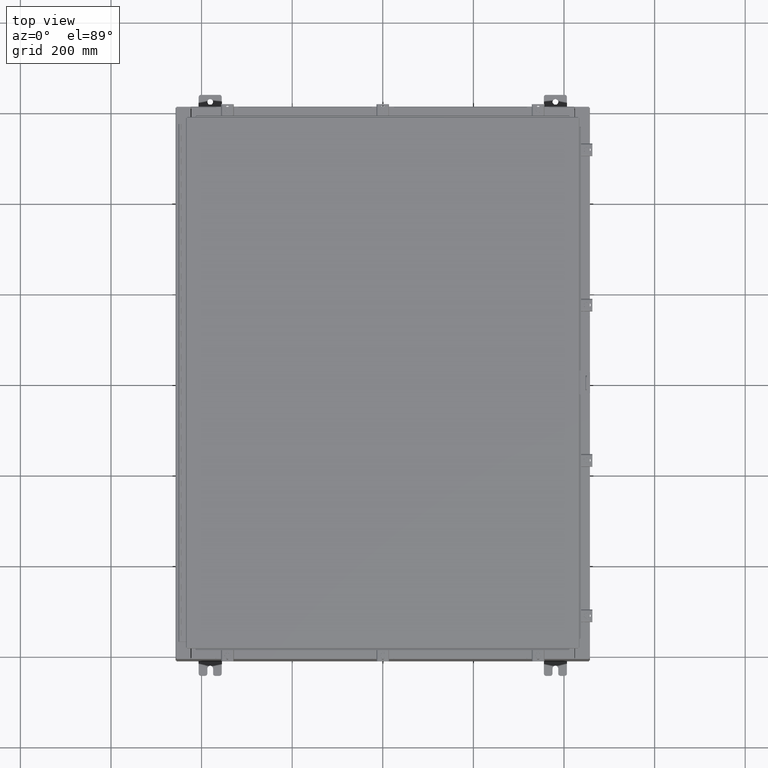
[diagram: clean part render]
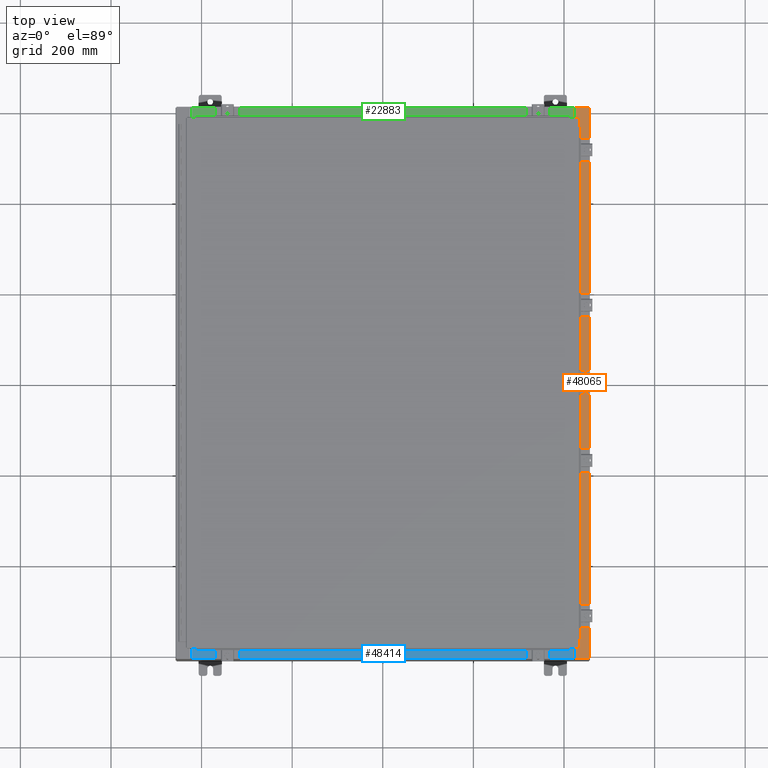
[diagram: same view with three faces highlighted in distinct colors, each labeled with its STEP entity id]
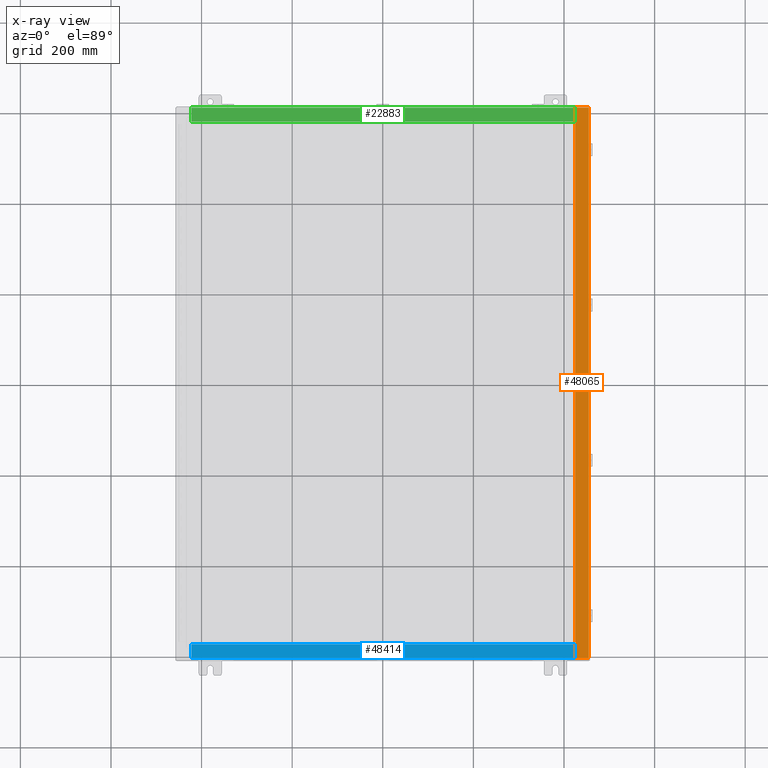
[diagram: x-ray of the same camera — body ghosted, the three highlighted faces saturated]
A machine part, top view with three faces highlighted in distinct colors.
The next image is the same camera in x-ray (body ghosted, the three faces saturated) — at least one of them is partly hidden behind the body in this view.
Their STEP definitions:

[orange] entity #48065 — the highlighted planar face has unit normal (-0, 0, -1).
#588 = PLANE ( 'NONE',  #3339 ) ;
#1095 = EDGE_CURVE ( 'NONE', #52980, #25653, #40263, .T. ) ;
#1449 = VERTEX_POINT ( 'NONE', #4700 ) ;
#2296 = VERTEX_POINT ( 'NONE', #34381 ) ;
#2338 = CARTESIAN_POINT ( 'NONE',  ( 16.75005000000003700, -22.59374999999998900, 11.92530000000001200 ) ) ;
#2356 = CARTESIAN_POINT ( 'NONE',  ( 16.75005000000003700, -22.63109999999998600, 11.92530000000000900 ) ) ;
#3250 = DIRECTION ( 'NONE',  ( 1.000000000000000000, 0.0000000000000000000, -7.132762385546384700E-015 ) ) ;
#3339 = AXIS2_PLACEMENT_3D ( 'NONE', #22097, #51938, #26365 ) ;
#4700 = CARTESIAN_POINT ( 'NONE',  ( 16.71270000000003700, 22.59374999999997200, 11.92530000000001200 ) ) ;
#5506 = DIRECTION ( 'NONE',  ( -0.0000000000000000000, -1.000000000000000000, -0.0000000000000000000 ) ) ;
#5538 = CARTESIAN_POINT ( 'NONE',  ( 16.75005000000003700, 22.61242499999997000, 11.92530000000001200 ) ) ;
#5930 = VERTEX_POINT ( 'NONE', #9589 ) ;
#6330 = ORIENTED_EDGE ( 'NONE', *, *, #32379, .T. ) ;
#6669 = CIRCLE ( 'NONE', #37465, 0.01867499999999949400 ) ;
#7006 = CARTESIAN_POINT ( 'NONE',  ( 16.71270000000003700, -22.59374999999998900, 11.92530000000001200 ) ) ;
#7992 = VECTOR ( 'NONE', #39925, 39.37007874015748100 ) ;
#8954 = LINE ( 'NONE', #35385, #41693 ) ;
#9186 = CARTESIAN_POINT ( 'NONE',  ( 16.75005000000003700, -22.59374999999998900, 11.92530000000000900 ) ) ;
#9589 = CARTESIAN_POINT ( 'NONE',  ( 16.69970000000003900, -22.63109999999998600, 11.92530000000000900 ) ) ;
#9841 = DIRECTION ( 'NONE',  ( 1.000000000000000000, 0.0000000000000000000, 0.0000000000000000000 ) ) ;
#10051 = CARTESIAN_POINT ( 'NONE',  ( 16.69970000000003900, 0.0000000000000000000, 11.92530000000000900 ) ) ;
#10358 = DIRECTION ( 'NONE',  ( -1.000000000000000000, 0.0000000000000000000, 7.132762385546384700E-015 ) ) ;
#10795 = CARTESIAN_POINT ( 'NONE',  ( 16.69970000000003900, -22.63109999999998600, 11.92530000000000900 ) ) ;
#10895 = DIRECTION ( 'NONE',  ( 1.000000000000000000, 0.0000000000000000000, 0.0000000000000000000 ) ) ;
#13251 = CARTESIAN_POINT ( 'NONE',  ( 16.69970000000003900, -23.92529999999998900, 11.92530000000000900 ) ) ;
#13357 = ORIENTED_EDGE ( 'NONE', *, *, #23304, .T. ) ;
#13771 = VECTOR ( 'NONE', #32250, 39.37007874015748100 ) ;
#15083 = EDGE_LOOP ( 'NONE', ( #40647, #13357, #6330, #16248, #47482, #21761, #48441, #25686, #29473, #48890, #42479, #34688 ) ) ;
#15247 = VECTOR ( 'NONE', #25599, 39.37007874015748100 ) ;
#16248 = ORIENTED_EDGE ( 'NONE', *, *, #20658, .F. ) ;
#18825 = EDGE_CURVE ( 'NONE', #21245, #23136, #36500, .T. ) ;
#18997 = LINE ( 'NONE', #31540, #39042 ) ;
#19499 = LINE ( 'NONE', #32371, #52195 ) ;
#20135 = EDGE_CURVE ( 'NONE', #25653, #43550, #18997, .T. ) ;
#20658 = EDGE_CURVE ( 'NONE', #52980, #52063, #8954, .T. ) ;
#21245 = VERTEX_POINT ( 'NONE', #9186 ) ;
#21523 = CARTESIAN_POINT ( 'NONE',  ( 17.91230000000003700, -23.92529999999998900, 11.92530000000000400 ) ) ;
#21581 = CARTESIAN_POINT ( 'NONE',  ( 16.75005000000003700, 22.59374999999997200, 11.92530000000000900 ) ) ;
#21761 = ORIENTED_EDGE ( 'NONE', *, *, #20135, .T. ) ;
#22097 = CARTESIAN_POINT ( 'NONE',  ( 8.532114493224043100E-014, 0.0000000000000000000, 11.92530000000013000 ) ) ;
#22592 = VECTOR ( 'NONE', #3250, 39.37007874015748100 ) ;
#22781 = CARTESIAN_POINT ( 'NONE',  ( 16.75005000000003700, -22.61242499999998800, 11.92530000000001200 ) ) ;
#23136 = VERTEX_POINT ( 'NONE', #47393 ) ;
#23304 = EDGE_CURVE ( 'NONE', #5930, #48634, #42079, .T. ) ;
#23433 = CIRCLE ( 'NONE', #32467, 0.01867499999999949400 ) ;
#25599 = DIRECTION ( 'NONE',  ( 1.000000000000000000, 0.0000000000000000000, 4.340572780400098900E-014 ) ) ;
#25653 = VERTEX_POINT ( 'NONE', #43400 ) ;
#25686 = ORIENTED_EDGE ( 'NONE', *, *, #51027, .F. ) ;
#26365 = DIRECTION ( 'NONE',  ( -1.000000000000000000, 0.0000000000000000000, 7.132762385546384700E-015 ) ) ;
#26819 = CARTESIAN_POINT ( 'NONE',  ( 16.75005000000003700, 22.63109999999996800, 11.92530000000001200 ) ) ;
#27074 = DIRECTION ( 'NONE',  ( 1.000000000000000000, 0.0000000000000000000, 0.0000000000000000000 ) ) ;
#28456 = VERTEX_POINT ( 'NONE', #2356 ) ;
#28775 = VERTEX_POINT ( 'NONE', #21581 ) ;
#29473 = ORIENTED_EDGE ( 'NONE', *, *, #50053, .F. ) ;
#31327 = CARTESIAN_POINT ( 'NONE',  ( 16.69970000000003900, 22.63109999999996800, 11.92530000000000900 ) ) ;
#31540 = CARTESIAN_POINT ( 'NONE',  ( 16.69970000000003900, 0.0000000000000000000, 11.92530000000000900 ) ) ;
#31657 = CARTESIAN_POINT ( 'NONE',  ( 8.532114493224043100E-014, 23.92529999999998600, 11.92530000000013000 ) ) ;
#32105 = EDGE_CURVE ( 'NONE', #2296, #43550, #45999, .T. ) ;
#32250 = DIRECTION ( 'NONE',  ( -1.000000000000000000, 0.0000000000000000000, 0.0000000000000000000 ) ) ;
#32371 = CARTESIAN_POINT ( 'NONE',  ( 16.71270000000003700, 22.59374999999997200, 11.92530000000001200 ) ) ;
#32379 = EDGE_CURVE ( 'NONE', #48634, #52063, #33962, .T. ) ;
#32467 = AXIS2_PLACEMENT_3D ( 'NONE', #22781, #52628, #27074 ) ;
#33962 = LINE ( 'NONE', #45834, #22592 ) ;
#34381 = CARTESIAN_POINT ( 'NONE',  ( 16.75005000000003700, 22.63109999999996800, 11.92530000000000900 ) ) ;
#34441 = EDGE_CURVE ( 'NONE', #23136, #1449, #47879, .T. ) ;
#34653 = VECTOR ( 'NONE', #35592, 39.37007874015748100 ) ;
#34688 = ORIENTED_EDGE ( 'NONE', *, *, #43040, .F. ) ;
#35385 = CARTESIAN_POINT ( 'NONE',  ( 17.91230000000003700, -23.92529999999998900, 11.92530000000000400 ) ) ;
#35420 = DIRECTION ( 'NONE',  ( 7.132762385546384700E-015, 0.0000000000000000000, 1.000000000000000000 ) ) ;
#35592 = DIRECTION ( 'NONE',  ( -1.000000000000000000, 0.0000000000000000000, -4.340572780400098900E-014 ) ) ;
#36500 = LINE ( 'NONE', #2338, #13771 ) ;
#37465 = AXIS2_PLACEMENT_3D ( 'NONE', #5538, #35420, #9841 ) ;
#39042 = VECTOR ( 'NONE', #48676, 39.37007874015748100 ) ;
#39552 = CARTESIAN_POINT ( 'NONE',  ( 17.91230000000003700, 23.92529999999998600, 11.92530000000000400 ) ) ;
#39925 = DIRECTION ( 'NONE',  ( 0.0000000000000000000, -1.000000000000000000, 0.0000000000000000000 ) ) ;
#40263 = LINE ( 'NONE', #31657, #50258 ) ;
#40647 = ORIENTED_EDGE ( 'NONE', *, *, #40734, .F. ) ;
#40734 = EDGE_CURVE ( 'NONE', #5930, #28456, #49303, .T. ) ;
#41199 = DIRECTION ( 'NONE',  ( -0.0000000000000000000, 1.000000000000000000, -0.0000000000000000000 ) ) ;
#41693 = VECTOR ( 'NONE', #5506, 39.37007874015748100 ) ;
#42079 = LINE ( 'NONE', #10051, #7992 ) ;
#42479 = ORIENTED_EDGE ( 'NONE', *, *, #18825, .F. ) ;
#43040 = EDGE_CURVE ( 'NONE', #28456, #21245, #23433, .T. ) ;
#43400 = CARTESIAN_POINT ( 'NONE',  ( 16.69970000000003900, 23.92529999999998200, 11.92530000000000900 ) ) ;
#43550 = VERTEX_POINT ( 'NONE', #31327 ) ;
#43733 = FACE_OUTER_BOUND ( 'NONE', #15083, .T. ) ;
#45227 = VECTOR ( 'NONE', #41199, 39.37007874015748100 ) ;
#45834 = CARTESIAN_POINT ( 'NONE',  ( 8.532114493224043100E-014, -23.92529999999998900, 11.92530000000013000 ) ) ;
#45999 = LINE ( 'NONE', #26819, #34653 ) ;
#47393 = CARTESIAN_POINT ( 'NONE',  ( 16.71270000000003700, -22.59374999999998900, 11.92530000000001200 ) ) ;
#47482 = ORIENTED_EDGE ( 'NONE', *, *, #1095, .T. ) ;
#47879 = LINE ( 'NONE', #7006, #45227 ) ;
#48065 = ADVANCED_FACE ( 'NONE', ( #43733 ), #588, .F. ) ;
#48441 = ORIENTED_EDGE ( 'NONE', *, *, #32105, .F. ) ;
#48634 = VERTEX_POINT ( 'NONE', #13251 ) ;
#48676 = DIRECTION ( 'NONE',  ( 0.0000000000000000000, -1.000000000000000000, 0.0000000000000000000 ) ) ;
#48890 = ORIENTED_EDGE ( 'NONE', *, *, #34441, .F. ) ;
#49303 = LINE ( 'NONE', #10795, #15247 ) ;
#50053 = EDGE_CURVE ( 'NONE', #1449, #28775, #19499, .T. ) ;
#50258 = VECTOR ( 'NONE', #10358, 39.37007874015748100 ) ;
#51027 = EDGE_CURVE ( 'NONE', #28775, #2296, #6669, .T. ) ;
#51938 = DIRECTION ( 'NONE',  ( -7.132762385546384700E-015, 0.0000000000000000000, -1.000000000000000000 ) ) ;
#52063 = VERTEX_POINT ( 'NONE', #21523 ) ;
#52195 = VECTOR ( 'NONE', #10895, 39.37007874015748100 ) ;
#52628 = DIRECTION ( 'NONE',  ( 7.132762385546384700E-015, 0.0000000000000000000, 1.000000000000000000 ) ) ;
#52980 = VERTEX_POINT ( 'NONE', #39552 ) ;

[blue] entity #48414 — the highlighted planar face has unit normal (-0, -0, 1).
#3186 = CARTESIAN_POINT ( 'NONE',  ( 4.993726728675632500E-015, 1.748382715945128500E-014, 5.999999999999999100 ) ) ;
#3806 = VECTOR ( 'NONE', #37395, 39.37007874015748100 ) ;
#5077 = VECTOR ( 'NONE', #39635, 39.37007874015748100 ) ;
#6290 = FACE_OUTER_BOUND ( 'NONE', #31253, .T. ) ;
#6485 = LINE ( 'NONE', #24264, #50571 ) ;
#7491 = PLANE ( 'NONE',  #39504 ) ;
#8736 = VECTOR ( 'NONE', #46092, 39.37007874015748100 ) ;
#9077 = VERTEX_POINT ( 'NONE', #22195 ) ;
#10105 = VERTEX_POINT ( 'NONE', #46926 ) ;
#12754 = EDGE_CURVE ( 'NONE', #20152, #9077, #15178, .T. ) ;
#15178 = LINE ( 'NONE', #28987, #3806 ) ;
#18309 = EDGE_CURVE ( 'NONE', #10105, #20152, #6485, .T. ) ;
#20152 = VERTEX_POINT ( 'NONE', #44399 ) ;
#22195 = CARTESIAN_POINT ( 'NONE',  ( -16.63719999999999600, -1.287299999999999200, 5.999999999999990200 ) ) ;
#22630 = CARTESIAN_POINT ( 'NONE',  ( -16.63719999999999600, -0.07470000000000234800, 5.999999999999988500 ) ) ;
#24264 = CARTESIAN_POINT ( 'NONE',  ( 16.63720000000000400, -1.300300000000001300, 6.000000000000015100 ) ) ;
#24654 = DIRECTION ( 'NONE',  ( -2.688223102148504800E-016, -1.000000000000000000, 2.842545071360935400E-015 ) ) ;
#24806 = CARTESIAN_POINT ( 'NONE',  ( 4.967270924029854700E-015, -0.08770000000000026400, 5.999999999999999100 ) ) ;
#25137 = ORIENTED_EDGE ( 'NONE', *, *, #12754, .F. ) ;
#28987 = CARTESIAN_POINT ( 'NONE',  ( 16.63720000000000400, -1.287299999999999200, 6.000000000000012400 ) ) ;
#31253 = EDGE_LOOP ( 'NONE', ( #39871, #25137, #51756, #50658 ) ) ;
#32877 = DIRECTION ( 'NONE',  ( -2.688223102148497900E-016, -1.000000000000000000, 3.734140369554233100E-015 ) ) ;
#37395 = DIRECTION ( 'NONE',  ( -1.000000000000000000, -2.688223102148527500E-016, -8.326672684688674100E-016 ) ) ;
#39504 = AXIS2_PLACEMENT_3D ( 'NONE', #3186, #50228, #24654 ) ;
#39635 = DIRECTION ( 'NONE',  ( 2.688223102148505300E-016, 1.000000000000000000, -2.842545071360935400E-015 ) ) ;
#39871 = ORIENTED_EDGE ( 'NONE', *, *, #54116, .F. ) ;
#40271 = CARTESIAN_POINT ( 'NONE',  ( -16.63719999999999600, -0.08770000000000026400, 5.999999999999988500 ) ) ;
#41462 = LINE ( 'NONE', #24806, #8736 ) ;
#41912 = VERTEX_POINT ( 'NONE', #40271 ) ;
#44399 = CARTESIAN_POINT ( 'NONE',  ( 16.63720000000000400, -1.287299999999999200, 6.000000000000015100 ) ) ;
#46092 = DIRECTION ( 'NONE',  ( -1.000000000000000000, -2.359820727510455800E-016, -8.326672684688674100E-016 ) ) ;
#46926 = CARTESIAN_POINT ( 'NONE',  ( 16.63720000000000400, -0.08770000000000026400, 6.000000000000010700 ) ) ;
#48414 = ADVANCED_FACE ( 'NONE', ( #6290 ), #7491, .T. ) ;
#50228 = DIRECTION ( 'NONE',  ( 8.326672684688675000E-016, 2.842545071360935100E-015, 1.000000000000000000 ) ) ;
#50500 = LINE ( 'NONE', #22630, #5077 ) ;
#50571 = VECTOR ( 'NONE', #32877, 39.37007874015748100 ) ;
#50658 = ORIENTED_EDGE ( 'NONE', *, *, #50753, .T. ) ;
#50753 = EDGE_CURVE ( 'NONE', #10105, #41912, #41462, .T. ) ;
#51756 = ORIENTED_EDGE ( 'NONE', *, *, #18309, .F. ) ;
#54116 = EDGE_CURVE ( 'NONE', #9077, #41912, #50500, .T. ) ;

[green] entity #22883 — the highlighted planar face has unit normal (0, 0, 1).
#119 = EDGE_CURVE ( 'NONE', #32290, #49759, #31113, .T. ) ;
#3941 = CARTESIAN_POINT ( 'NONE',  ( 16.63720000000000400, -1.300300000000001300, 6.000000000000003600 ) ) ;
#6292 = EDGE_CURVE ( 'NONE', #32290, #50965, #23666, .T. ) ;
#6804 = CARTESIAN_POINT ( 'NONE',  ( 16.63720000000000400, -0.08770000000000026400, 5.999999999999999100 ) ) ;
#8067 = LINE ( 'NONE', #26775, #52117 ) ;
#8243 = DIRECTION ( 'NONE',  ( -0.0000000000000000000, -1.000000000000000000, 3.566381192773190000E-015 ) ) ;
#8392 = VECTOR ( 'NONE', #50585, 39.37007874015748100 ) ;
#9274 = LINE ( 'NONE', #18470, #30660 ) ;
#11566 = CARTESIAN_POINT ( 'NONE',  ( -2.276882821461954300E-018, 1.748382715945128500E-014, 5.999999999999999100 ) ) ;
#11757 = DIRECTION ( 'NONE',  ( 0.0000000000000000000, -1.000000000000000000, 2.674785894579892700E-015 ) ) ;
#13825 = ORIENTED_EDGE ( 'NONE', *, *, #38440, .F. ) ;
#18470 = CARTESIAN_POINT ( 'NONE',  ( 16.63720000000000400, -1.287299999999999200, 6.000000000000001800 ) ) ;
#19427 = ORIENTED_EDGE ( 'NONE', *, *, #119, .T. ) ;
#20055 = EDGE_LOOP ( 'NONE', ( #13825, #34001, #55063, #19427 ) ) ;
#22485 = DIRECTION ( 'NONE',  ( -0.0000000000000000000, 1.000000000000000000, -2.674785894579892700E-015 ) ) ;
#22762 = DIRECTION ( 'NONE',  ( -1.000000000000000000, 0.0000000000000000000, 0.0000000000000000000 ) ) ;
#22883 = ADVANCED_FACE ( 'NONE', ( #42129 ), #45755, .T. ) ;
#23666 = LINE ( 'NONE', #3941, #33676 ) ;
#25018 = CARTESIAN_POINT ( 'NONE',  ( -5.156971941007230600E-018, -0.08770000000000026400, 5.999999999999999100 ) ) ;
#26775 = CARTESIAN_POINT ( 'NONE',  ( -16.63719999999999600, -0.07469999999999797600, 5.999999999999999100 ) ) ;
#28287 = VERTEX_POINT ( 'NONE', #52403 ) ;
#30660 = VECTOR ( 'NONE', #22762, 39.37007874015748100 ) ;
#31113 = LINE ( 'NONE', #25018, #8392 ) ;
#32290 = VERTEX_POINT ( 'NONE', #6804 ) ;
#33676 = VECTOR ( 'NONE', #8243, 39.37007874015748100 ) ;
#34001 = ORIENTED_EDGE ( 'NONE', *, *, #54761, .F. ) ;
#37359 = DIRECTION ( 'NONE',  ( 0.0000000000000000000, 2.674785894579892700E-015, 1.000000000000000000 ) ) ;
#38440 = EDGE_CURVE ( 'NONE', #28287, #49759, #8067, .T. ) ;
#42129 = FACE_OUTER_BOUND ( 'NONE', #20055, .T. ) ;
#43056 = CARTESIAN_POINT ( 'NONE',  ( -16.63719999999999600, -0.08770000000000026400, 5.999999999999999100 ) ) ;
#45755 = PLANE ( 'NONE',  #45982 ) ;
#45982 = AXIS2_PLACEMENT_3D ( 'NONE', #11566, #37359, #11757 ) ;
#47549 = CARTESIAN_POINT ( 'NONE',  ( 16.63720000000000400, -1.287299999999999200, 6.000000000000003600 ) ) ;
#49759 = VERTEX_POINT ( 'NONE', #43056 ) ;
#50585 = DIRECTION ( 'NONE',  ( -1.000000000000000000, 3.284023746380717400E-017, -8.784060394284559800E-032 ) ) ;
#50965 = VERTEX_POINT ( 'NONE', #47549 ) ;
#52117 = VECTOR ( 'NONE', #22485, 39.37007874015748100 ) ;
#52403 = CARTESIAN_POINT ( 'NONE',  ( -16.63719999999999600, -1.287299999999999200, 6.000000000000001800 ) ) ;
#54761 = EDGE_CURVE ( 'NONE', #50965, #28287, #9274, .T. ) ;
#55063 = ORIENTED_EDGE ( 'NONE', *, *, #6292, .F. ) ;